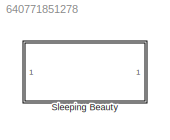
MODEL slx_640771851278
KIND library
CONFIG AbsTol = auto
CONFIG EnableMultiTasking = off
CONFIG FixedStep = auto
CONFIG MaxStep = auto
CONFIG MinStep = auto
CONFIG RelTol = 1e-3
CONFIG SampleTimeConstraint = Unconstrained
CONFIG SolverName = VariableStepAuto
CONFIG StartTime = 0.0
CONFIG StopTime = 10.0
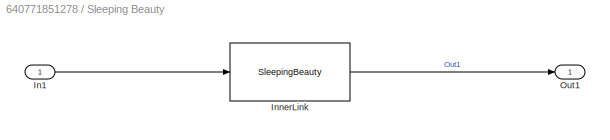
BLOCK [SubSystem] Sleeping Beauty
BLOCK [Inport] Sleeping Beauty/In1
BLOCK [Reference] Sleeping Beauty/InnerLink  REF=SleepingBeautyBtc/SleepingBeauty
  SourceBlock = SleepingBeautyBtc/SleepingBeauty
  SourceProductName = Bose Blocklib
  SourceType = Blocklib SleepingBeauty
BLOCK [Outport] Sleeping Beauty/Out1
LINE Sleeping Beauty/In1:1 -> Sleeping Beauty/InnerLink:1
LINE Sleeping Beauty/InnerLink:1 -> Sleeping Beauty/Out1:1
